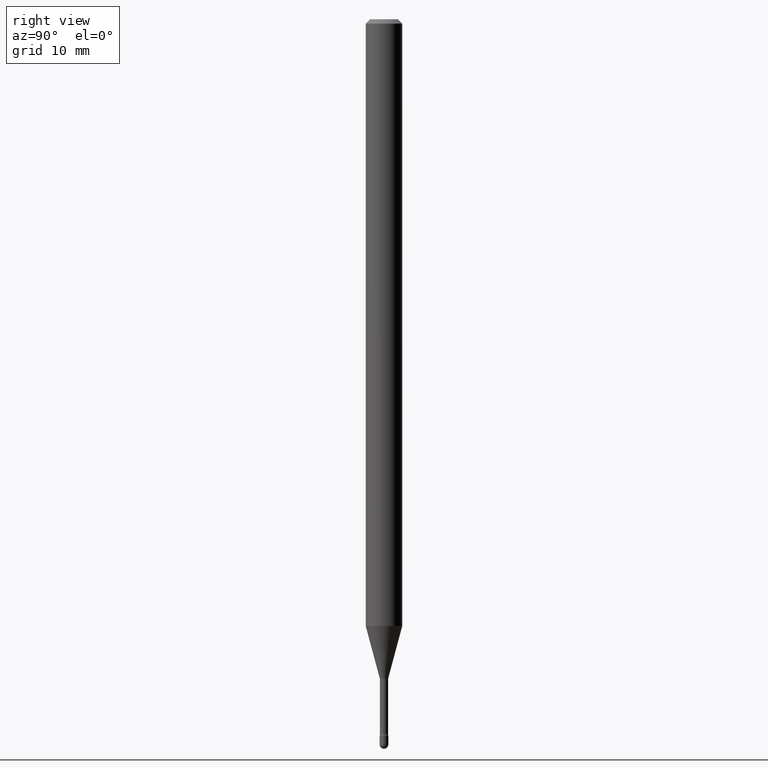
[diagram: clean part render]
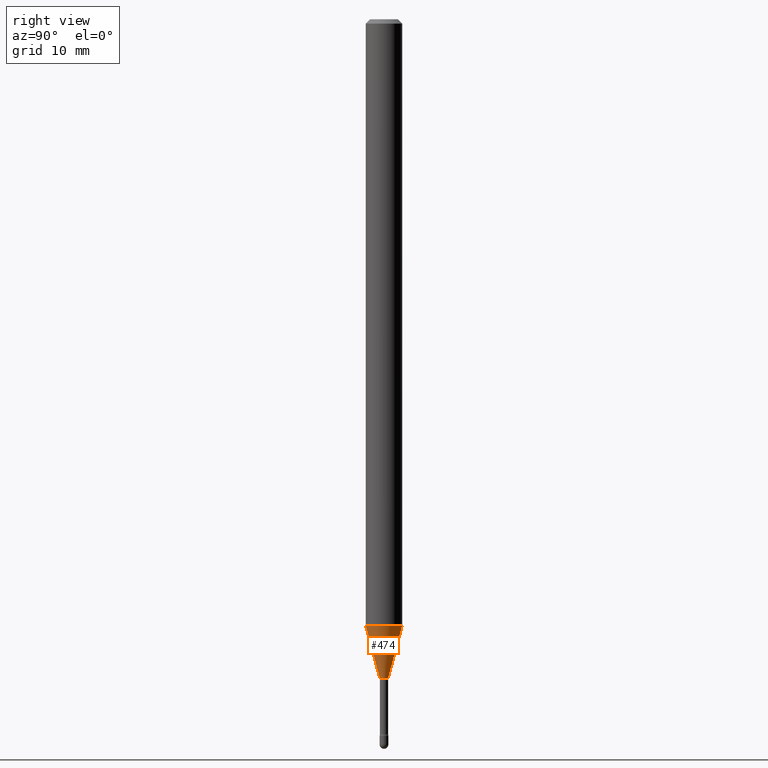
[diagram: same view with one face highlighted and labeled with its STEP entity id]
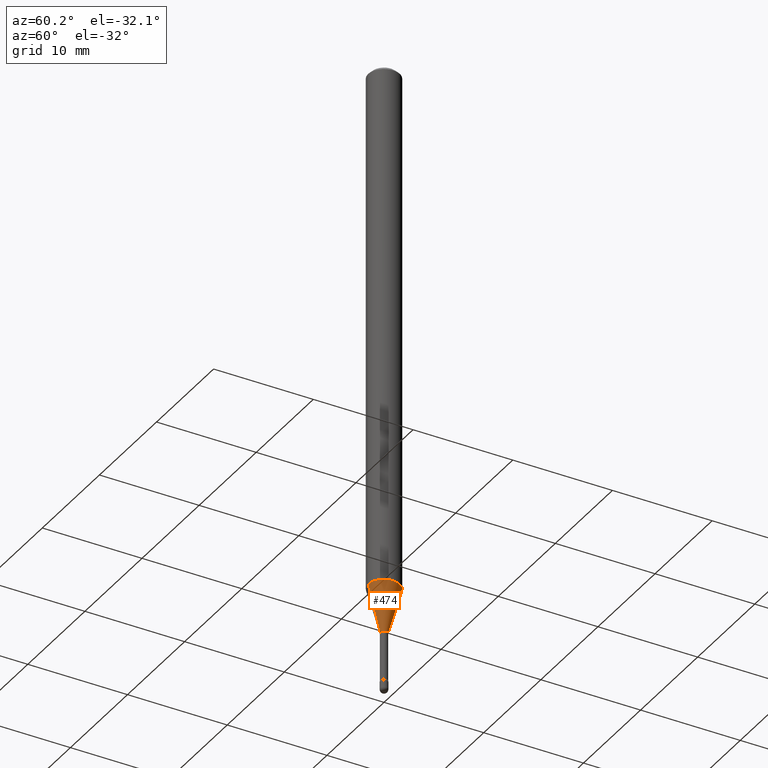
[diagram: same view with one face highlighted and labeled with its STEP entity id]
A machine part, right view. The second image highlights one B-rep face of the part: STEP entity #474.
A second angle (auxiliary view) of the same face is appended — the face is thin or edge-on in the first view.
In plain terms, the highlighted conical surface has half-angle 15 deg.
Its self-contained STEP definition (entity closure, byte-faithful):
#18 = ORIENTED_EDGE ( 'NONE', *, *, #301, .T. ) ;
#39 = EDGE_LOOP ( 'NONE', ( #18, #441, #322, #197 ) ) ;
#61 = CARTESIAN_POINT ( 'NONE',  ( 5.084929837540810216E-29, -7.260222587899458845E-15, -2.079368740913666969 ) ) ;
#101 = AXIS2_PLACEMENT_3D ( 'NONE', #157, #285, #550 ) ;
#102 = CARTESIAN_POINT ( 'NONE',  ( 1.038181992333288843E-16, 0.01461111260565609374, -2.258092501787273498 ) ) ;
#104 = VERTEX_POINT ( 'NONE', #387 ) ;
#127 = CARTESIAN_POINT ( 'NONE',  ( 2.739537045417211848E-16, 0.01461111260565609374, -2.258092501787273498 ) ) ;
#157 = CARTESIAN_POINT ( 'NONE',  ( 5.521984490937392586E-29, -7.884245763855615505E-15, -2.258092501787273498 ) ) ;
#160 = DIRECTION ( 'NONE',  ( -6.982962677686265922E-15, -1.000000000000000000, 0.000000000000000000 ) ) ;
#167 = VERTEX_POINT ( 'NONE', #127 ) ;
#186 = AXIS2_PLACEMENT_3D ( 'NONE', #461, #293, #160 ) ;
#197 = ORIENTED_EDGE ( 'NONE', *, *, #522, .F. ) ;
#198 = VECTOR ( 'NONE', #421, 39.37007874015749564 ) ;
#199 = DIRECTION ( 'NONE',  ( -2.445419966882117621E-29, 3.491551279504829123E-15, 1.000000000000000000 ) ) ;
#239 = CARTESIAN_POINT ( 'NONE',  ( -4.364351673553407386E-16, -0.06250000000000725808, -2.079368740913666969 ) ) ;
#251 = VERTEX_POINT ( 'NONE', #275 ) ;
#275 = CARTESIAN_POINT ( 'NONE',  ( 4.440892098501132019E-16, 0.06249999999999272804, -2.079368740913667413 ) ) ;
#284 = CONICAL_SURFACE ( 'NONE', #186, 0.01461111260566397632, 0.2617993877991501295 ) ;
#285 = DIRECTION ( 'NONE',  ( -2.445419966882117621E-29, 3.491551279504829123E-15, 1.000000000000000000 ) ) ;
#293 = DIRECTION ( 'NONE',  ( -2.445419966882117621E-29, 3.491551279504829123E-15, 1.000000000000000000 ) ) ;
#301 = EDGE_CURVE ( 'NONE', #104, #167, #477, .T. ) ;
#319 = VERTEX_POINT ( 'NONE', #239 ) ;
#322 = ORIENTED_EDGE ( 'NONE', *, *, #368, .F. ) ;
#353 = LINE ( 'NONE', #102, #484 ) ;
#366 = CARTESIAN_POINT ( 'NONE',  ( -1.020288540047676708E-16, -0.01461111260567186064, -2.258092501787273498 ) ) ;
#368 = EDGE_CURVE ( 'NONE', #319, #251, #470, .T. ) ;
#372 = FACE_OUTER_BOUND ( 'NONE', #39, .T. ) ;
#387 = CARTESIAN_POINT ( 'NONE',  ( -1.020288540047676708E-16, -0.01461111260567186064, -2.258092501787273498 ) ) ;
#421 = DIRECTION ( 'NONE',  ( -1.807323732225328562E-15, -0.2588190451025179639, 0.9659258262890689783 ) ) ;
#441 = ORIENTED_EDGE ( 'NONE', *, *, #449, .T. ) ;
#449 = EDGE_CURVE ( 'NONE', #167, #251, #353, .T. ) ;
#451 = LINE ( 'NONE', #366, #198 ) ;
#459 = AXIS2_PLACEMENT_3D ( 'NONE', #61, #199, #540 ) ;
#461 = CARTESIAN_POINT ( 'NONE',  ( 5.521984490937392586E-29, -7.884245763855615505E-15, -2.258092501787273498 ) ) ;
#470 = CIRCLE ( 'NONE', #459, 0.06250000000000000000 ) ;
#474 = ADVANCED_FACE ( 'NONE', ( #372 ), #284, .T. ) ;
#477 = CIRCLE ( 'NONE', #101, 0.01461111260566397632 ) ;
#484 = VECTOR ( 'NONE', #537, 39.37007874015747433 ) ;
#522 = EDGE_CURVE ( 'NONE', #104, #319, #451, .T. ) ;
#537 = DIRECTION ( 'NONE',  ( 1.839019923739599526E-15, 0.2588190451025248473, 0.9659258262890673130 ) ) ;
#540 = DIRECTION ( 'NONE',  ( -6.982962677686265922E-15, -1.000000000000000000, 4.370956789862821150E-15 ) ) ;
#550 = DIRECTION ( 'NONE',  ( -6.982962677686265922E-15, -1.000000000000000000, 0.000000000000000000 ) ) ;